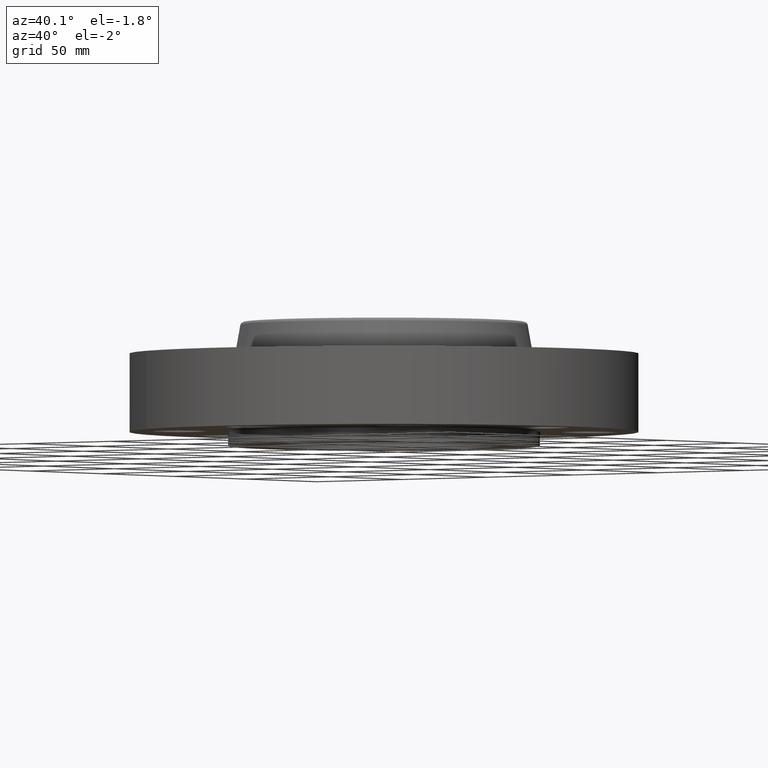
[diagram: clean part render]
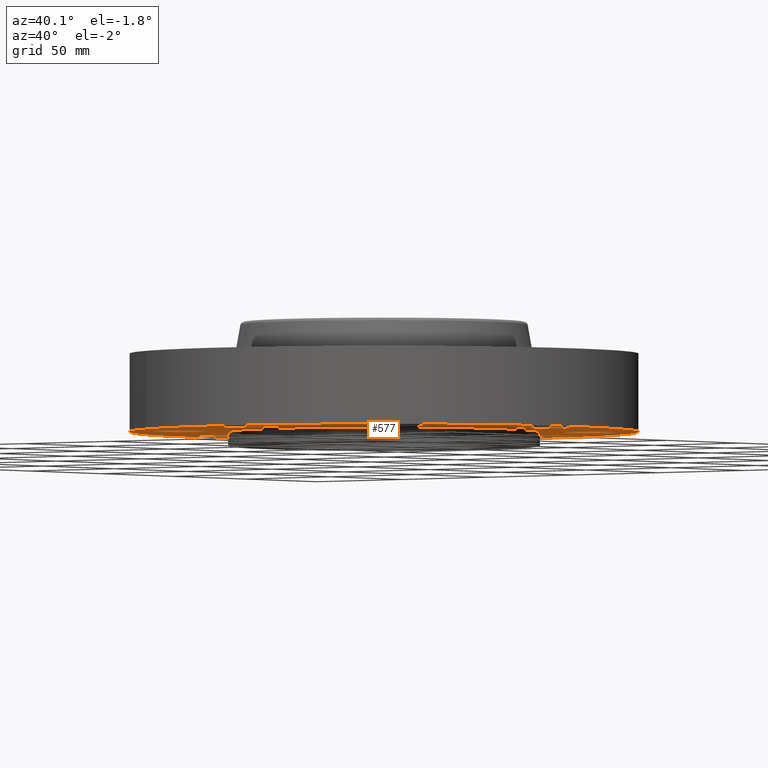
[diagram: same view with one face highlighted and labeled with its STEP entity id]
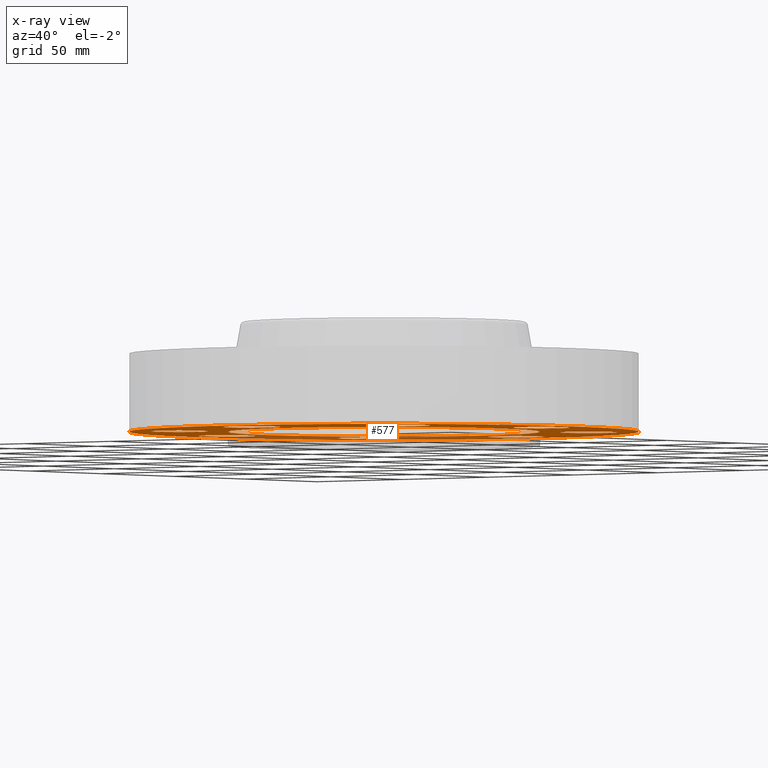
[diagram: x-ray of the same camera — body ghosted, the highlighted face saturated]
A machine part, auxiliary view. The second image highlights one B-rep face of the part: STEP entity #577.
The next image is the same camera in x-ray: the body ghosted, the highlighted face saturated — about 27% of this face is hidden behind the body in this view.
In plain terms, the highlighted planar face has unit normal (0, 0, -1).
Its self-contained STEP definition (entity closure, byte-faithful):
#51=AXIS2_PLACEMENT_3D('Circle Axis2P3D',#49,#50,$) ;
#77=AXIS2_PLACEMENT_3D('Circle Axis2P3D',#75,#76,$) ;
#99=AXIS2_PLACEMENT_3D('Circle Axis2P3D',#97,#98,$) ;
#134=AXIS2_PLACEMENT_3D('Circle Axis2P3D',#132,#133,$) ;
#405=AXIS2_PLACEMENT_3D('Circle Axis2P3D',#403,#404,$) ;
#424=AXIS2_PLACEMENT_3D('Circle Axis2P3D',#422,#423,$) ;
#437=AXIS2_PLACEMENT_3D('Plane Axis2P3D',#434,#435,#436) ;
#453=AXIS2_PLACEMENT_3D('Circle Axis2P3D',#451,#452,$) ;
#462=AXIS2_PLACEMENT_3D('Circle Axis2P3D',#460,#461,$) ;
#471=AXIS2_PLACEMENT_3D('Circle Axis2P3D',#469,#470,$) ;
#480=AXIS2_PLACEMENT_3D('Circle Axis2P3D',#478,#479,$) ;
#489=AXIS2_PLACEMENT_3D('Circle Axis2P3D',#487,#488,$) ;
#498=AXIS2_PLACEMENT_3D('Circle Axis2P3D',#496,#497,$) ;
#507=AXIS2_PLACEMENT_3D('Circle Axis2P3D',#505,#506,$) ;
#516=AXIS2_PLACEMENT_3D('Circle Axis2P3D',#514,#515,$) ;
#525=AXIS2_PLACEMENT_3D('Circle Axis2P3D',#523,#524,$) ;
#534=AXIS2_PLACEMENT_3D('Circle Axis2P3D',#532,#533,$) ;
#543=AXIS2_PLACEMENT_3D('Circle Axis2P3D',#541,#542,$) ;
#552=AXIS2_PLACEMENT_3D('Circle Axis2P3D',#550,#551,$) ;
#561=AXIS2_PLACEMENT_3D('Circle Axis2P3D',#559,#560,$) ;
#570=AXIS2_PLACEMENT_3D('Circle Axis2P3D',#568,#569,$) ;
#44=CARTESIAN_POINT('Vertex',(3.18620871907,0.239712769303,0.)) ;
#49=CARTESIAN_POINT('Axis2P3D Location',(3.62500000001,0.,0.)) ;
#53=CARTESIAN_POINT('Vertex',(4.06379128096,-0.239712769303,0.)) ;
#75=CARTESIAN_POINT('Axis2P3D Location',(3.62500000001,0.,0.)) ;
#97=CARTESIAN_POINT('Axis2P3D Location',(0.,0.,5.59482469102E-016)) ;
#101=CARTESIAN_POINT('Vertex',(-2.15741492373,-3.94912152852,5.59482469102E-016)) ;
#103=CARTESIAN_POINT('Vertex',(2.15741492373,3.94912152852,5.59482469102E-016)) ;
#132=CARTESIAN_POINT('Axis2P3D Location',(0.,0.,5.59482469102E-016)) ;
#400=CARTESIAN_POINT('Vertex',(-1.31842023117,-2.41335204521,4.19611851827E-016)) ;
#403=CARTESIAN_POINT('Axis2P3D Location',(0.,0.,4.19611851827E-016)) ;
#407=CARTESIAN_POINT('Vertex',(1.31842023117,2.41335204521,4.19611851827E-016)) ;
#422=CARTESIAN_POINT('Axis2P3D Location',(0.,0.,4.19611851827E-016)) ;
#434=CARTESIAN_POINT('Axis2P3D Location',(0.,2.75000000001,0.)) ;
#451=CARTESIAN_POINT('Axis2P3D Location',(2.56326208181,-2.56326208181,0.)) ;
#455=CARTESIAN_POINT('Vertex',(2.42249231624,-2.08348726682,0.)) ;
#457=CARTESIAN_POINT('Vertex',(2.70403184738,-3.04303689681,0.)) ;
#460=CARTESIAN_POINT('Axis2P3D Location',(2.56326208181,-2.56326208181,0.)) ;
#469=CARTESIAN_POINT('Axis2P3D Location',(-2.09805925913E-016,-3.62500000001,0.)) ;
#473=CARTESIAN_POINT('Vertex',(0.239712769303,-3.18620871907,0.)) ;
#475=CARTESIAN_POINT('Vertex',(-0.239712769303,-4.06379128096,0.)) ;
#478=CARTESIAN_POINT('Axis2P3D Location',(-8.39223703654E-016,-3.62500000001,0.)) ;
#487=CARTESIAN_POINT('Axis2P3D Location',(-2.56326208181,-2.56326208181,0.)) ;
#491=CARTESIAN_POINT('Vertex',(-2.08348726682,-2.42249231624,0.)) ;
#493=CARTESIAN_POINT('Vertex',(-3.04303689681,-2.70403184738,0.)) ;
#496=CARTESIAN_POINT('Axis2P3D Location',(-2.56326208181,-2.56326208181,0.)) ;
#505=CARTESIAN_POINT('Axis2P3D Location',(-3.62500000001,0.,0.)) ;
#509=CARTESIAN_POINT('Vertex',(-3.18620871907,-0.239712769303,0.)) ;
#511=CARTESIAN_POINT('Vertex',(-4.06379128096,0.239712769303,0.)) ;
#514=CARTESIAN_POINT('Axis2P3D Location',(-3.62500000001,0.,0.)) ;
#523=CARTESIAN_POINT('Axis2P3D Location',(-2.56326208181,2.56326208181,0.)) ;
#527=CARTESIAN_POINT('Vertex',(-2.42249231624,2.08348726682,0.)) ;
#529=CARTESIAN_POINT('Vertex',(-2.70403184738,3.04303689681,0.)) ;
#532=CARTESIAN_POINT('Axis2P3D Location',(-2.56326208181,2.56326208181,0.)) ;
#541=CARTESIAN_POINT('Axis2P3D Location',(-6.2941777774E-016,3.62500000001,0.)) ;
#545=CARTESIAN_POINT('Vertex',(-0.239712769303,3.18620871907,0.)) ;
#547=CARTESIAN_POINT('Vertex',(0.239712769303,4.06379128096,0.)) ;
#550=CARTESIAN_POINT('Axis2P3D Location',(-5.59482469102E-016,3.62500000001,0.)) ;
#559=CARTESIAN_POINT('Axis2P3D Location',(2.56326208181,2.56326208181,0.)) ;
#563=CARTESIAN_POINT('Vertex',(2.08348726682,2.42249231624,0.)) ;
#565=CARTESIAN_POINT('Vertex',(3.04303689681,2.70403184738,0.)) ;
#568=CARTESIAN_POINT('Axis2P3D Location',(2.56326208181,2.56326208181,0.)) ;
#50=DIRECTION('Axis2P3D Direction',(0.,-0.,-0.0393700787402)) ;
#76=DIRECTION('Axis2P3D Direction',(0.,-0.,-0.0393700787402)) ;
#98=DIRECTION('Axis2P3D Direction',(0.,0.,-0.0393700787402)) ;
#133=DIRECTION('Axis2P3D Direction',(0.,0.,-0.0393700787402)) ;
#404=DIRECTION('Axis2P3D Direction',(0.,0.,-0.0393700787402)) ;
#423=DIRECTION('Axis2P3D Direction',(0.,0.,-0.0393700787402)) ;
#435=DIRECTION('Axis2P3D Direction',(0.,0.,-0.0393700787402)) ;
#436=DIRECTION('Axis2P3D XDirection',(0.0393700787402,0.,0.)) ;
#452=DIRECTION('Axis2P3D Direction',(0.,0.,-0.0393700787402)) ;
#461=DIRECTION('Axis2P3D Direction',(0.,0.,-0.0393700787402)) ;
#470=DIRECTION('Axis2P3D Direction',(0.,0.,-0.0393700787402)) ;
#479=DIRECTION('Axis2P3D Direction',(0.,0.,-0.0393700787402)) ;
#488=DIRECTION('Axis2P3D Direction',(0.,0.,-0.0393700787402)) ;
#497=DIRECTION('Axis2P3D Direction',(0.,0.,-0.0393700787402)) ;
#506=DIRECTION('Axis2P3D Direction',(0.,0.,-0.0393700787402)) ;
#515=DIRECTION('Axis2P3D Direction',(0.,0.,-0.0393700787402)) ;
#524=DIRECTION('Axis2P3D Direction',(0.,0.,-0.0393700787402)) ;
#533=DIRECTION('Axis2P3D Direction',(0.,0.,-0.0393700787402)) ;
#542=DIRECTION('Axis2P3D Direction',(0.,0.,-0.0393700787402)) ;
#551=DIRECTION('Axis2P3D Direction',(0.,0.,-0.0393700787402)) ;
#560=DIRECTION('Axis2P3D Direction',(0.,0.,-0.0393700787402)) ;
#569=DIRECTION('Axis2P3D Direction',(0.,0.,-0.0393700787402)) ;
#440=ORIENTED_EDGE('',*,*,#105,.T.) ;
#441=ORIENTED_EDGE('',*,*,#136,.T.) ;
#444=ORIENTED_EDGE('',*,*,#79,.F.) ;
#445=ORIENTED_EDGE('',*,*,#55,.F.) ;
#448=ORIENTED_EDGE('',*,*,#426,.F.) ;
#449=ORIENTED_EDGE('',*,*,#409,.F.) ;
#466=ORIENTED_EDGE('',*,*,#459,.F.) ;
#467=ORIENTED_EDGE('',*,*,#464,.F.) ;
#484=ORIENTED_EDGE('',*,*,#477,.F.) ;
#485=ORIENTED_EDGE('',*,*,#482,.F.) ;
#502=ORIENTED_EDGE('',*,*,#495,.F.) ;
#503=ORIENTED_EDGE('',*,*,#500,.F.) ;
#520=ORIENTED_EDGE('',*,*,#513,.F.) ;
#521=ORIENTED_EDGE('',*,*,#518,.F.) ;
#538=ORIENTED_EDGE('',*,*,#531,.F.) ;
#539=ORIENTED_EDGE('',*,*,#536,.F.) ;
#556=ORIENTED_EDGE('',*,*,#549,.F.) ;
#557=ORIENTED_EDGE('',*,*,#554,.F.) ;
#574=ORIENTED_EDGE('',*,*,#567,.F.) ;
#575=ORIENTED_EDGE('',*,*,#572,.F.) ;
#446=FACE_BOUND('',#443,.T.) ;
#450=FACE_BOUND('',#447,.T.) ;
#468=FACE_BOUND('',#465,.T.) ;
#486=FACE_BOUND('',#483,.T.) ;
#504=FACE_BOUND('',#501,.T.) ;
#522=FACE_BOUND('',#519,.T.) ;
#540=FACE_BOUND('',#537,.T.) ;
#558=FACE_BOUND('',#555,.T.) ;
#576=FACE_BOUND('',#573,.T.) ;
#577=ADVANCED_FACE('PartBody',(#442,#446,#450,#468,#486,#504,#522,#540,#558,#576),#438,.T.) ;
#52=CIRCLE('generated circle',#51,0.500000000002) ;
#78=CIRCLE('generated circle',#77,0.500000000002) ;
#100=CIRCLE('generated circle',#99,4.50000000002) ;
#135=CIRCLE('generated circle',#134,4.50000000002) ;
#406=CIRCLE('generated circle',#405,2.75000000001) ;
#425=CIRCLE('generated circle',#424,2.75000000001) ;
#454=CIRCLE('generated circle',#453,0.500000000002) ;
#463=CIRCLE('generated circle',#462,0.500000000002) ;
#472=CIRCLE('generated circle',#471,0.500000000002) ;
#481=CIRCLE('generated circle',#480,0.500000000002) ;
#490=CIRCLE('generated circle',#489,0.500000000002) ;
#499=CIRCLE('generated circle',#498,0.500000000002) ;
#508=CIRCLE('generated circle',#507,0.500000000002) ;
#517=CIRCLE('generated circle',#516,0.500000000002) ;
#526=CIRCLE('generated circle',#525,0.500000000002) ;
#535=CIRCLE('generated circle',#534,0.500000000002) ;
#544=CIRCLE('generated circle',#543,0.500000000002) ;
#553=CIRCLE('generated circle',#552,0.500000000002) ;
#562=CIRCLE('generated circle',#561,0.500000000002) ;
#571=CIRCLE('generated circle',#570,0.500000000002) ;
#55=EDGE_CURVE('',#45,#54,#52,.T.) ;
#79=EDGE_CURVE('',#54,#45,#78,.T.) ;
#105=EDGE_CURVE('',#102,#104,#100,.T.) ;
#136=EDGE_CURVE('',#104,#102,#135,.T.) ;
#409=EDGE_CURVE('',#401,#408,#406,.T.) ;
#426=EDGE_CURVE('',#408,#401,#425,.T.) ;
#459=EDGE_CURVE('',#456,#458,#454,.T.) ;
#464=EDGE_CURVE('',#458,#456,#463,.T.) ;
#477=EDGE_CURVE('',#474,#476,#472,.T.) ;
#482=EDGE_CURVE('',#476,#474,#481,.T.) ;
#495=EDGE_CURVE('',#492,#494,#490,.T.) ;
#500=EDGE_CURVE('',#494,#492,#499,.T.) ;
#513=EDGE_CURVE('',#510,#512,#508,.T.) ;
#518=EDGE_CURVE('',#512,#510,#517,.T.) ;
#531=EDGE_CURVE('',#528,#530,#526,.T.) ;
#536=EDGE_CURVE('',#530,#528,#535,.T.) ;
#549=EDGE_CURVE('',#546,#548,#544,.T.) ;
#554=EDGE_CURVE('',#548,#546,#553,.T.) ;
#567=EDGE_CURVE('',#564,#566,#562,.T.) ;
#572=EDGE_CURVE('',#566,#564,#571,.T.) ;
#439=EDGE_LOOP('',(#440,#441)) ;
#443=EDGE_LOOP('',(#444,#445)) ;
#447=EDGE_LOOP('',(#448,#449)) ;
#465=EDGE_LOOP('',(#466,#467)) ;
#483=EDGE_LOOP('',(#484,#485)) ;
#501=EDGE_LOOP('',(#502,#503)) ;
#519=EDGE_LOOP('',(#520,#521)) ;
#537=EDGE_LOOP('',(#538,#539)) ;
#555=EDGE_LOOP('',(#556,#557)) ;
#573=EDGE_LOOP('',(#574,#575)) ;
#442=FACE_OUTER_BOUND('',#439,.T.) ;
#438=PLANE('',#437) ;
#45=VERTEX_POINT('',#44) ;
#54=VERTEX_POINT('',#53) ;
#102=VERTEX_POINT('',#101) ;
#104=VERTEX_POINT('',#103) ;
#401=VERTEX_POINT('',#400) ;
#408=VERTEX_POINT('',#407) ;
#456=VERTEX_POINT('',#455) ;
#458=VERTEX_POINT('',#457) ;
#474=VERTEX_POINT('',#473) ;
#476=VERTEX_POINT('',#475) ;
#492=VERTEX_POINT('',#491) ;
#494=VERTEX_POINT('',#493) ;
#510=VERTEX_POINT('',#509) ;
#512=VERTEX_POINT('',#511) ;
#528=VERTEX_POINT('',#527) ;
#530=VERTEX_POINT('',#529) ;
#546=VERTEX_POINT('',#545) ;
#548=VERTEX_POINT('',#547) ;
#564=VERTEX_POINT('',#563) ;
#566=VERTEX_POINT('',#565) ;